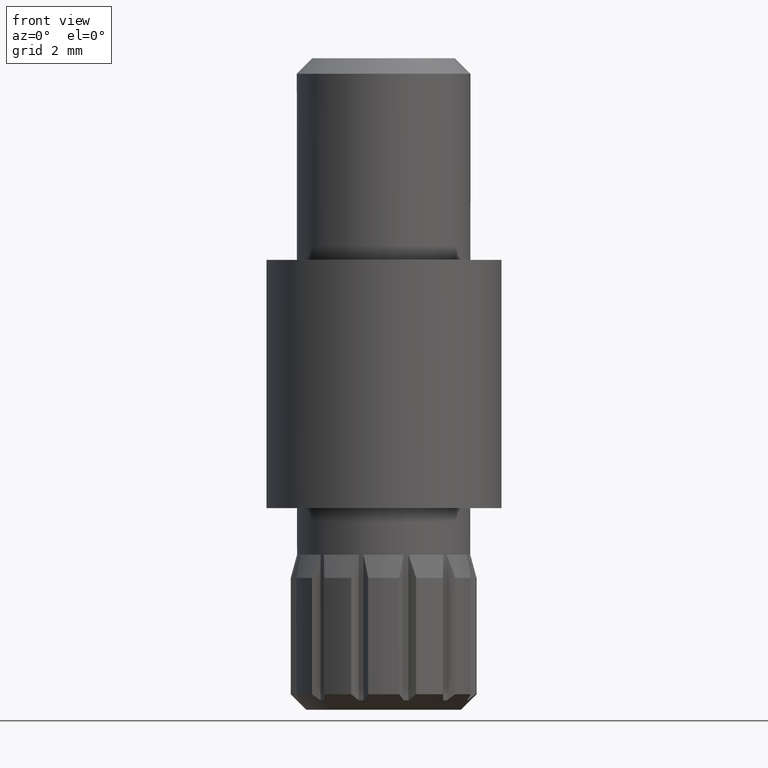
[diagram: clean part render]
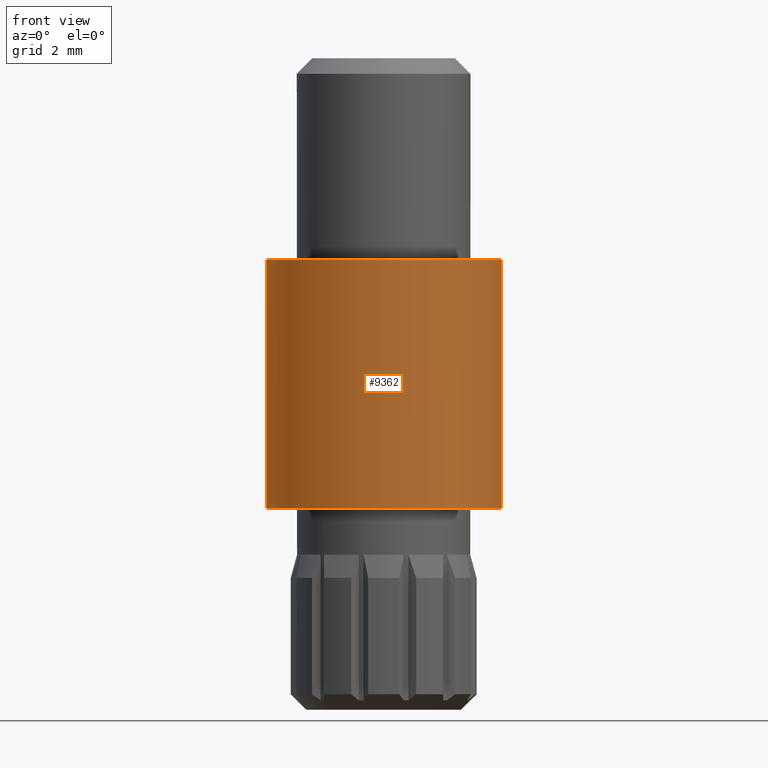
[diagram: same view with one face highlighted and labeled with its STEP entity id]
A machine part, front view. The second image highlights one B-rep face of the part: STEP entity #9362.
In plain terms, the highlighted cylindrical surface (bore or boss wall) has radius 3.8 mm, axis along (-0, -0, -1).
Its self-contained STEP definition (entity closure, byte-faithful):
#626 = VERTEX_POINT ( 'NONE', #6631 ) ;
#1020 = EDGE_LOOP ( 'NONE', ( #3116 ) ) ;
#1397 = DIRECTION ( 'NONE',  ( -0.000000000000000000, -0.000000000000000000, -1.000000000000000000 ) ) ;
#1540 = FACE_OUTER_BOUND ( 'NONE', #11306, .T. ) ;
#3116 = ORIENTED_EDGE ( 'NONE', *, *, #4560, .T. ) ;
#3448 = VERTEX_POINT ( 'NONE', #7578 ) ;
#4111 = DIRECTION ( 'NONE',  ( 1.000000000000000000, 0.000000000000000000, 0.000000000000000000 ) ) ;
#4343 = FACE_OUTER_BOUND ( 'NONE', #1020, .T. ) ;
#4560 = EDGE_CURVE ( 'NONE', #626, #626, #11988, .T. ) ;
#4647 = CYLINDRICAL_SURFACE ( 'NONE', #8357, 3.799999999999999822 ) ;
#5142 = CARTESIAN_POINT ( 'NONE',  ( 0.000000000000000000, 0.000000000000000000, 0.000000000000000000 ) ) ;
#5649 = EDGE_CURVE ( 'NONE', #3448, #3448, #6626, .T. ) ;
#6052 = DIRECTION ( 'NONE',  ( -1.000000000000000000, 0.000000000000000000, 0.000000000000000000 ) ) ;
#6626 = CIRCLE ( 'NONE', #7205, 3.799999999999999822 ) ;
#6631 = CARTESIAN_POINT ( 'NONE',  ( 3.799999999999999822, 0.000000000000000000, 0.000000000000000000 ) ) ;
#7084 = DIRECTION ( 'NONE',  ( 0.000000000000000000, 0.000000000000000000, 1.000000000000000000 ) ) ;
#7205 = AXIS2_PLACEMENT_3D ( 'NONE', #10817, #7084, #9014 ) ;
#7557 = ORIENTED_EDGE ( 'NONE', *, *, #5649, .F. ) ;
#7578 = CARTESIAN_POINT ( 'NONE',  ( 3.799999999999999822, 0.000000000000000000, 8.000000000000000000 ) ) ;
#8357 = AXIS2_PLACEMENT_3D ( 'NONE', #9551, #1397, #6052 ) ;
#9014 = DIRECTION ( 'NONE',  ( 1.000000000000000000, 0.000000000000000000, 0.000000000000000000 ) ) ;
#9362 = ADVANCED_FACE ( 'NONE', ( #1540, #4343 ), #4647, .T. ) ;
#9551 = CARTESIAN_POINT ( 'NONE',  ( 0.000000000000000000, 0.000000000000000000, 8.000000000000000000 ) ) ;
#10817 = CARTESIAN_POINT ( 'NONE',  ( 0.000000000000000000, 0.000000000000000000, 8.000000000000000000 ) ) ;
#11306 = EDGE_LOOP ( 'NONE', ( #7557 ) ) ;
#11788 = DIRECTION ( 'NONE',  ( 0.000000000000000000, 0.000000000000000000, 1.000000000000000000 ) ) ;
#11988 = CIRCLE ( 'NONE', #12345, 3.799999999999999822 ) ;
#12345 = AXIS2_PLACEMENT_3D ( 'NONE', #5142, #11788, #4111 ) ;